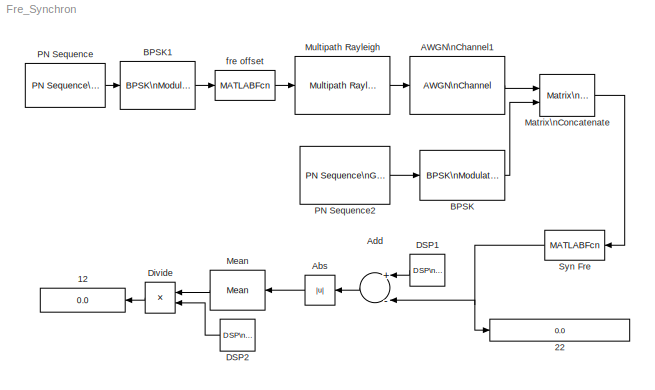
MODEL Fre_Synchron
KIND model
BLOCK [Display] 12
  Decimation = 1
  Lockdown = off
  Ports = [1]
BLOCK [Display] 22
  Lockdown = off
  Ports = [1]
BLOCK [Reference] AWGN\nChannel1  REF=commchan2/AWGN\nChannel
  EbNodB = 5
  EsNodB = 10
  FunctionWithSeparateData = off
  Ports = [1, 1]
  Ps = .5
  RTWMemSecDataConstants = Inherit from model
  RTWMemSecDataInternal = Inherit from model
  RTWMemSecDataParameters = Inherit from model
  RTWMemSecFuncExecute = Inherit from model
  RTWMemSecFuncInitTerm = Inherit from model
  SNRdB = 10
  ShowPortLabels = FromPortIcon
  SourceBlock = commchan2/AWGN\nChannel
  SourceType = AWGN Channel
  SystemSampleTime = -1
  Tsym = 1e-6
  bitsPerSym = 1
  noiseMode = Signal to noise ratio  (SNR)
  seed = 6724
  variance = 1
BLOCK [Abs] Abs
  SaturateOnIntegerOverflow = off
BLOCK [Sum] Add
  InputSameDT = off
  Inputs = +-
  OutDataTypeMode = Inherit via internal rule
  OutScaling = 2^-10
  Ports = [2, 1]
  SaturateOnIntegerOverflow = off
BLOCK [Reference] BPSK  REF=commdigbbndpm2/BPSK\nModulator\nBaseband
  FunctionWithSeparateData = off
  Ph = 0
  Ports = [1, 1]
  RTWMemSecDataConstants = Inherit from model
  RTWMemSecDataInternal = Inherit from model
  RTWMemSecDataParameters = Inherit from model
  RTWMemSecFuncExecute = Inherit from model
  RTWMemSecFuncInitTerm = Inherit from model
  ShowPortLabels = FromPortIcon
  SourceBlock = commdigbbndpm2/BPSK\nModulator\nBaseband
  SourceType = BPSK Modulator Baseband
  SystemSampleTime = -1
BLOCK [Reference] BPSK1  REF=commdigbbndpm2/BPSK\nModulator\nBaseband
  FunctionWithSeparateData = off
  Ph = 0
  Ports = [1, 1]
  RTWMemSecDataConstants = Inherit from model
  RTWMemSecDataInternal = Inherit from model
  RTWMemSecDataParameters = Inherit from model
  RTWMemSecFuncExecute = Inherit from model
  RTWMemSecFuncInitTerm = Inherit from model
  ShowPortLabels = FromPortIcon
  SourceBlock = commdigbbndpm2/BPSK\nModulator\nBaseband
  SourceType = BPSK Modulator Baseband
  SystemSampleTime = -1
BLOCK [Reference] DSP1  REF=dspsrcs4/DSP\nConstant
  FramebasedOutput = -inf
  FunctionWithSeparateData = off
  InterpretAs1D = -inf
  Ports = [0, 1]
  RTWMemSecDataConstants = Inherit from model
  RTWMemSecDataInternal = Inherit from model
  RTWMemSecDataParameters = Inherit from model
  RTWMemSecFuncExecute = Inherit from model
  RTWMemSecFuncInitTerm = Inherit from model
  SampleMode = Discrete
  ShowPortLabels = FromPortIcon
  SourceBlock = dspsrcs4/DSP\nConstant
  SourceType = DSP Constant
  SystemSampleTime = -1
  Ts = -inf
  Value = 0.25
  additionalParams = off
  allowOverrides = on
  continuousOutput = Sample-based
  dataType = Inherit from 'Constant value'
  discreteOutput = Sample-based
  fracBitsMode = Best precision
  framePeriod = 256
  isSigned = on
  numFracBits = 15
  sampTime = 63e-6
  udDataType = sfix(16)
  wordLen = 16
BLOCK [Reference] DSP2  REF=dspsrcs4/DSP\nConstant
  FramebasedOutput = -inf
  FunctionWithSeparateData = off
  InterpretAs1D = -inf
  Ports = [0, 1]
  RTWMemSecDataConstants = Inherit from model
  RTWMemSecDataInternal = Inherit from model
  RTWMemSecDataParameters = Inherit from model
  RTWMemSecFuncExecute = Inherit from model
  RTWMemSecFuncInitTerm = Inherit from model
  SampleMode = Discrete
  ShowPortLabels = FromPortIcon
  SourceBlock = dspsrcs4/DSP\nConstant
  SourceType = DSP Constant
  SystemSampleTime = -1
  Ts = -inf
  Value = 0.25
  additionalParams = off
  allowOverrides = on
  continuousOutput = Sample-based
  dataType = Inherit from 'Constant value'
  discreteOutput = Sample-based
  fracBitsMode = Best precision
  framePeriod = 256
  isSigned = on
  numFracBits = 15
  sampTime = 63e-6
  udDataType = sfix(16)
  wordLen = 16
BLOCK [Product] Divide
  InputSameDT = off
  Inputs = */
  OutDataTypeMode = Inherit via internal rule
  OutScaling = 2^-10
  Ports = [2, 1]
  RndMeth = Floor
  SaturateOnIntegerOverflow = off
BLOCK [Reference] Matrix\nConcatenate  REF=simulink/Math\nOperations/Matrix\nConcatenation
  Ports = [2, 1]
  SourceBlock = simulink/Math\nOperations/Matrix\nConcatenation
  SourceType = Matrix Concatenation
  catMethod = Vertical
  numInports = 2
BLOCK [Reference] Mean  REF=dspstat3/Mean
  DialogController = dspDDGCreate
  DialogControllerArgs = DataTag0
  LockScale = off
  Ports = [1, 1]
  SourceBlock = dspstat3/Mean
  SourceType = Mean
  accumFracLength = 30
  accumMode = Same as input
  accumWordLength = 32
  additionalParams = off
  allowOverrides = on
  outputFracLength = 30
  outputMode = Same as accumulator
  outputWordLength = 32
  overflowMode = off
  reset_popup = None
  roundingMode = Floor
  run = on
BLOCK [Reference] Multipath Rayleigh  REF=commchan2/Multipath Rayleigh\nFading Channel
  FunctionWithSeparateData = off
  Ports = [1, 1]
  RTWMemSecDataConstants = Inherit from model
  RTWMemSecDataInternal = Inherit from model
  RTWMemSecDataParameters = Inherit from model
  RTWMemSecFuncExecute = Inherit from model
  RTWMemSecFuncInitTerm = Inherit from model
  ShowPortLabels = FromPortIcon
  SourceBlock = commchan2/Multipath Rayleigh\nFading Channel
  SourceType = Multipath Rayleigh Fading Channel
  SystemSampleTime = -1
  seed = 73
BLOCK [Reference] PN Sequence  REF=commseqgen2/PN Sequence\nGenerator
  Ports = [0, 1]
  SourceBlock = commseqgen2/PN Sequence\nGenerator
  SourceType = PN Sequence Generator
  Ts = 1e-6
  frameBased = on
  ini_sta = [0 0 0 0 0 1]
  poly = [6 5 0]
  reset = off
  sampPerFrame = 63
  shift = 0
BLOCK [Reference] PN Sequence2  REF=commseqgen2/PN Sequence\nGenerator
  Ports = [0, 1]
  SourceBlock = commseqgen2/PN Sequence\nGenerator
  SourceType = PN Sequence Generator
  Ts = 1e-6
  frameBased = on
  ini_sta = [0 0 0 0 0 1]
  poly = [6 5 0]
  reset = off
  sampPerFrame = 63
  shift = 0
BLOCK [MATLABFcn] Syn Fre
  MATLABFcn = Fre_Syn_CDMA(u)
  Output1D = off
  Ports = [1, 1]
BLOCK [MATLABFcn] fre offset
  MATLABFcn = Fre_offset_CDMA(u)
  Output1D = off
  Ports = [1, 1]
LINE AWGN\nChannel1:1 -> Matrix\nConcatenate:1
LINE Abs:1 -> Mean:1
LINE Add:1 -> Abs:1
LINE BPSK1:1 -> fre offset:1
LINE BPSK:1 -> Matrix\nConcatenate:2
LINE DSP1:1 -> Add:1
LINE DSP2:1 -> Divide:2
LINE Divide:1 -> 12:1
LINE Matrix\nConcatenate:1 -> Syn Fre:1
LINE Mean:1 -> Divide:1
LINE Multipath Rayleigh:1 -> AWGN\nChannel1:1
LINE PN Sequence2:1 -> BPSK:1
LINE PN Sequence:1 -> BPSK1:1
NET Syn Fre:1 -> 22:1, Add:2
LINE fre offset:1 -> Multipath Rayleigh:1
note: NET lines group one-source signal fan-out (src -> all destinations, sorted); 1:1 wires keep LINE
